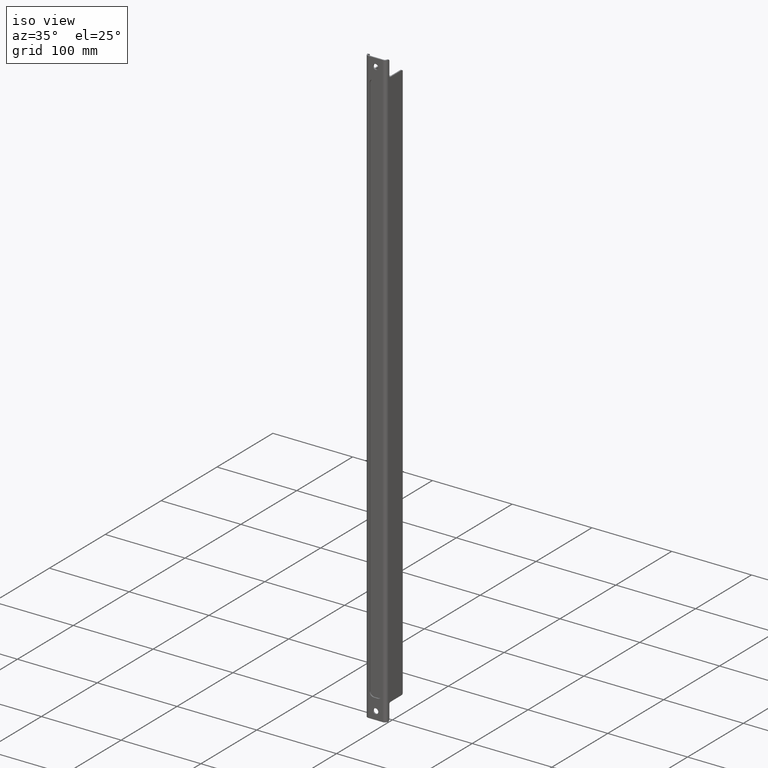
[diagram: clean part render]
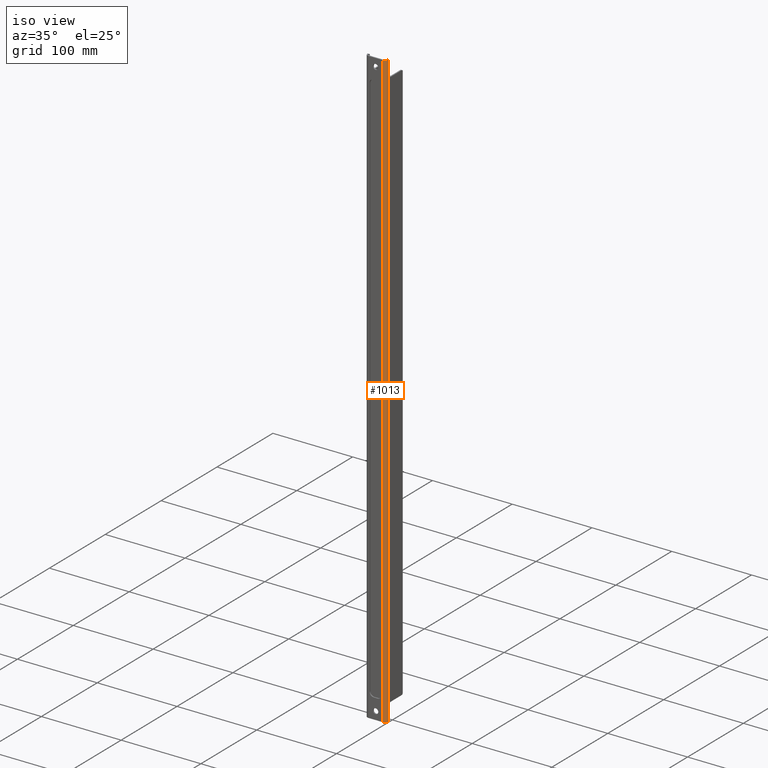
[diagram: same view with one face highlighted and labeled with its STEP entity id]
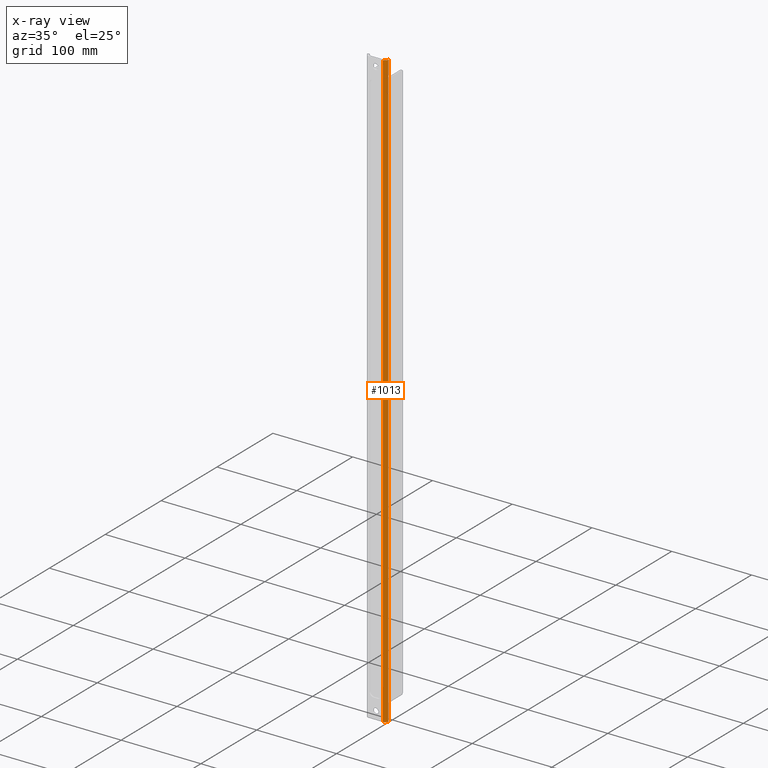
[diagram: x-ray of the same camera — body ghosted, the highlighted face saturated]
A machine part, iso view. The second image highlights one B-rep face of the part: STEP entity #1013.
The next image is the same camera in x-ray: the body ghosted, the highlighted face saturated — about 0% of this face is hidden behind the body in this view.
In plain terms, the highlighted cylindrical surface (edge-blend (fillet) strip) has radius 4 mm, axis along (0, 0, -1).
Its self-contained STEP definition (entity closure, byte-faithful):
#33=LINE('',#1535,#121);
#90=LINE('',#1720,#178);
#121=VECTOR('',#1213,1000.);
#178=VECTOR('',#1410,1000.);
#429=ORIENTED_EDGE('',*,*,#631,.T.);
#430=ORIENTED_EDGE('',*,*,#540,.T.);
#431=ORIENTED_EDGE('',*,*,#632,.F.);
#432=ORIENTED_EDGE('',*,*,#633,.F.);
#540=EDGE_CURVE('',#685,#683,#33,.T.);
#631=EDGE_CURVE('',#741,#685,#801,.T.);
#632=EDGE_CURVE('',#742,#683,#802,.T.);
#633=EDGE_CURVE('',#741,#742,#90,.T.);
#683=VERTEX_POINT('',#1533);
#685=VERTEX_POINT('',#1536);
#741=VERTEX_POINT('',#1717);
#742=VERTEX_POINT('',#1719);
#801=CIRCLE('',#1132,3.99999999999999);
#802=CIRCLE('',#1133,3.99999999999999);
#860=EDGE_LOOP('',(#429,#430,#431,#432));
#928=FACE_BOUND('',#860,.T.);
#964=CYLINDRICAL_SURFACE('',#1131,3.99999999999999);
#1013=ADVANCED_FACE('',(#928),#964,.T.);
#1131=AXIS2_PLACEMENT_3D('',#1715,#1404,#1405);
#1132=AXIS2_PLACEMENT_3D('',#1716,#1406,#1407);
#1133=AXIS2_PLACEMENT_3D('',#1718,#1408,#1409);
#1213=DIRECTION('',(-3.43749899352818E-17,1.66533453693773E-16,-1.));
#1404=DIRECTION('',(8.93686180177302E-17,1.66533453693773E-16,-1.));
#1405=DIRECTION('',(4.06163832661068E-16,1.,1.66533453693773E-16));
#1406=DIRECTION('',(8.93686180177302E-17,1.66533453693773E-16,-1.));
#1407=DIRECTION('',(4.06163832661068E-16,1.,1.66533453693773E-16));
#1408=DIRECTION('',(8.93686180177302E-17,1.66533453693773E-16,-1.));
#1409=DIRECTION('',(4.06163832661068E-16,1.,1.66533453693773E-16));
#1410=DIRECTION('',(8.93686180177302E-17,1.31838984174237E-16,-1.));
#1533=CARTESIAN_POINT('',(9.00000000000002,-29.9999999999999,-375.));
#1535=CARTESIAN_POINT('',(9.,-30.0000000000003,375.));
#1536=CARTESIAN_POINT('',(8.99999999999999,-30.0000000000002,375.));
#1715=CARTESIAN_POINT('',(9.00000000000003,-26.0000000000002,-375.));
#1716=CARTESIAN_POINT('',(8.99999999999999,-26.0000000000003,375.));
#1717=CARTESIAN_POINT('',(13.,-26.0000000000003,375.));
#1718=CARTESIAN_POINT('',(9.00000000000002,-25.9999999999999,-375.));
#1719=CARTESIAN_POINT('',(13.0000000000001,-26.,-375.));
#1720=CARTESIAN_POINT('',(13.,-26.0000000000002,-2.28741647717006E-15));